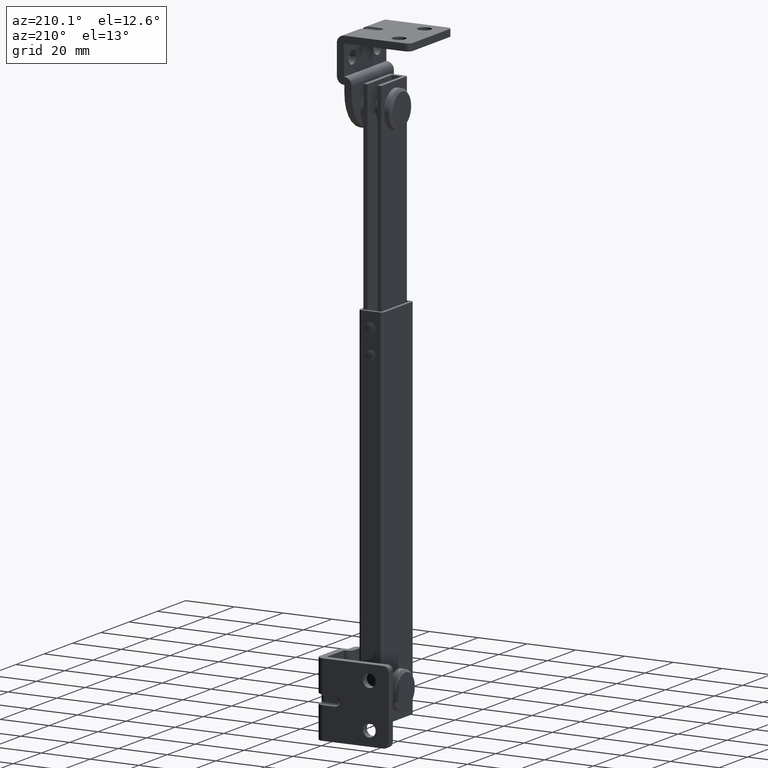
[diagram: clean part render]
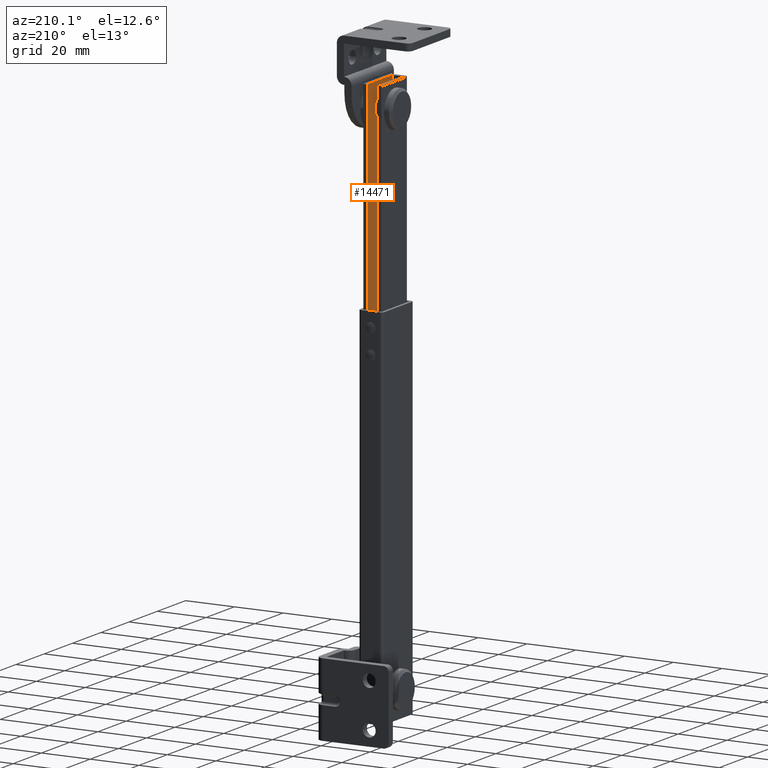
[diagram: same view with one face highlighted and labeled with its STEP entity id]
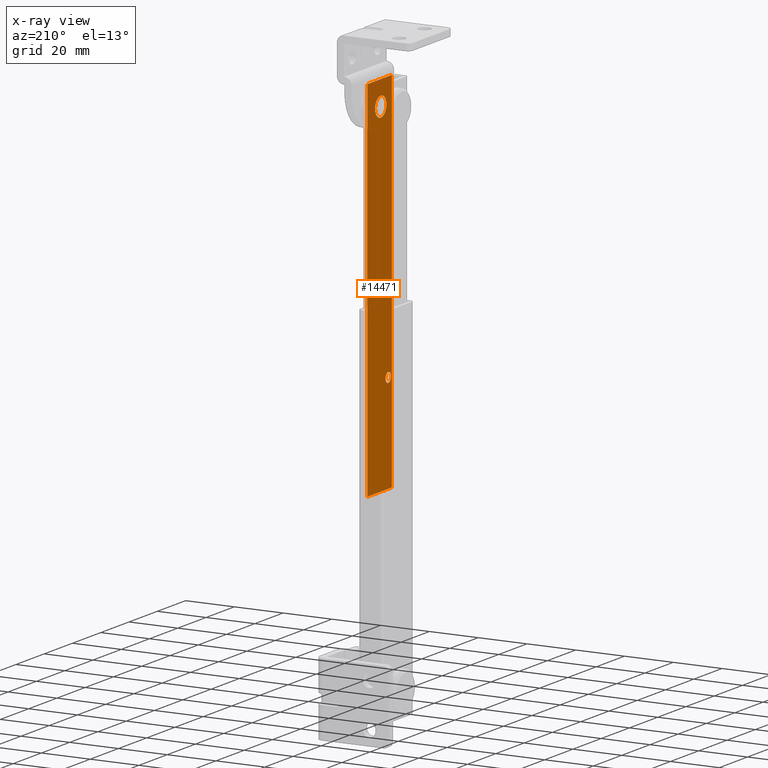
[diagram: x-ray of the same camera — body ghosted, the highlighted face saturated]
A machine part, auxiliary view. The second image highlights one B-rep face of the part: STEP entity #14471.
The next image is the same camera in x-ray: the body ghosted, the highlighted face saturated — about 0% of this face is hidden behind the body in this view.
In plain terms, the highlighted face is a freeform B-spline surface patch.
Its self-contained STEP definition (entity closure, byte-faithful):
#13164=CARTESIAN_POINT('',(7.199997000000000,-1.421085E-014,207.0));
#13165=VERTEX_POINT('',#13164);
#13166=CARTESIAN_POINT('',(7.199997000000000,-3.969064855180284,210.503487990706300));
#13167=VERTEX_POINT('',#13166);
#13168=CARTESIAN_POINT('',(7.199997000000000,-1.421085E-014,207.0));
#13169=CARTESIAN_POINT('',(7.199996999999998,-3.530794398853929,207.000000000000060));
#13170=CARTESIAN_POINT('',(7.199997000000000,-3.969064855180285,210.503487990706300));
#13178=(BOUNDED_CURVE()B_SPLINE_CURVE(2,(#13168,#13169,#13170),.UNSPECIFIED.,.F.,.U.)B_SPLINE_CURVE_WITH_KNOTS((3,3),(0.0,0.228526070946500),.UNSPECIFIED.)CURVE()GEOMETRIC_REPRESENTATION_ITEM()RATIONAL_B_SPLINE_CURVE((1.0,0.732265053990753,0.954005430114038))REPRESENTATION_ITEM(''));
#13179=EDGE_CURVE('',#13165,#13167,#13178,.T.);
#13220=CARTESIAN_POINT('',(7.199997000000000,3.999847692243370,211.034906143517700));
#13221=VERTEX_POINT('',#13220);
#13227=CARTESIAN_POINT('',(7.199997000000000,3.999847692243370,211.034906143517670));
#13228=CARTESIAN_POINT('',(7.199997000000000,3.999999999999986,211.017453404807010));
#13229=CARTESIAN_POINT('',(7.199997000000000,3.999999999999986,211.0));
#13230=CARTESIAN_POINT('',(7.199997000000001,3.999999999999987,207.000000000000090));
#13231=CARTESIAN_POINT('',(7.199997000000000,-1.421085E-014,207.0));
#13239=(BOUNDED_CURVE()B_SPLINE_CURVE(2,(#13227,#13228,#13229,#13230,#13231),.UNSPECIFIED.,.F.,.U.)B_SPLINE_CURVE_WITH_KNOTS((3,2,3),(0.748460105530773,0.750000000000000,1.0),.UNSPECIFIED.)CURVE()GEOMETRIC_REPRESENTATION_ITEM()RATIONAL_B_SPLINE_CURVE((0.996414027789737,0.998195901409100,1.0,0.707106781186548,1.0))REPRESENTATION_ITEM(''));
#13240=EDGE_CURVE('',#13221,#13165,#13239,.T.);
#13267=CARTESIAN_POINT('',(7.199997000000000,-1.421085E-014,215.0));
#13268=VERTEX_POINT('',#13267);
#13269=CARTESIAN_POINT('',(7.199996999999999,-3.969064855180285,210.503487990706390));
#13270=CARTESIAN_POINT('',(7.199996999999999,-4.000000000000013,210.750780288880290));
#13271=CARTESIAN_POINT('',(7.199997000000000,-4.000000000000014,211.0));
#13272=CARTESIAN_POINT('',(7.199997000000001,-4.000000000000015,214.999999999999940));
#13273=CARTESIAN_POINT('',(7.199997000000000,-1.421085E-014,215.0));
#13281=(BOUNDED_CURVE()B_SPLINE_CURVE(2,(#13269,#13270,#13271,#13272,#13273),.UNSPECIFIED.,.F.,.U.)B_SPLINE_CURVE_WITH_KNOTS((3,2,3),(0.228526070946500,0.250000000000000,0.500000000000000),.UNSPECIFIED.)CURVE()GEOMETRIC_REPRESENTATION_ITEM()RATIONAL_B_SPLINE_CURVE((0.954005430114038,0.974841727195795,1.0,0.707106781186548,1.0))REPRESENTATION_ITEM(''));
#13282=EDGE_CURVE('',#13167,#13268,#13281,.T.);
#13284=CARTESIAN_POINT('',(7.199997000000000,-1.421085E-014,215.0));
#13285=CARTESIAN_POINT('',(7.199997000000000,3.965244839357821,215.000000000000060));
#13286=CARTESIAN_POINT('',(7.199997000000001,3.999847692243370,211.034906143517650));
#13294=(BOUNDED_CURVE()B_SPLINE_CURVE(2,(#13284,#13285,#13286),.UNSPECIFIED.,.F.,.U.)B_SPLINE_CURVE_WITH_KNOTS((3,3),(0.500000000000000,0.748460105530772),.UNSPECIFIED.)CURVE()GEOMETRIC_REPRESENTATION_ITEM()RATIONAL_B_SPLINE_CURVE((1.0,0.708910879777448,0.996414027789735))REPRESENTATION_ITEM(''));
#13295=EDGE_CURVE('',#13268,#13221,#13294,.T.);
#13536=CARTESIAN_POINT('',(7.199997000000000,-5.273787244531961,113.500000000000000));
#13537=VERTEX_POINT('',#13536);
#13538=CARTESIAN_POINT('',(7.199997000000001,-7.267621752743235,111.656920214955900));
#13539=VERTEX_POINT('',#13538);
#13540=CARTESIAN_POINT('',(7.199997000000000,-5.273787244531961,113.500000000000000));
#13541=CARTESIAN_POINT('',(7.199997000000000,-7.122566345758976,113.500000000000030));
#13542=CARTESIAN_POINT('',(7.199997000000001,-7.267621752743235,111.656920214955860));
#13550=(BOUNDED_CURVE()B_SPLINE_CURVE(2,(#13540,#13541,#13542),.UNSPECIFIED.,.F.,.U.)B_SPLINE_CURVE_WITH_KNOTS((3,3),(0.500000000000000,0.736331126657737),.UNSPECIFIED.)CURVE()GEOMETRIC_REPRESENTATION_ITEM()RATIONAL_B_SPLINE_CURVE((1.0,0.723120862429623,0.969722993099484))REPRESENTATION_ITEM(''));
#13551=EDGE_CURVE('',#13537,#13539,#13550,.T.);
#13553=CARTESIAN_POINT('',(7.199997000000000,-3.279952736320685,111.343079785044200));
#13554=VERTEX_POINT('',#13553);
#13555=CARTESIAN_POINT('',(7.199997000000000,-3.279952736320685,111.343079785044170));
#13556=CARTESIAN_POINT('',(7.199997000000001,-3.273787244531961,111.421418769539320));
#13557=CARTESIAN_POINT('',(7.199997000000000,-3.273787244531960,111.500000000000000));
#13558=CARTESIAN_POINT('',(7.199997000000001,-3.273787244531960,113.500000000000000));
#13559=CARTESIAN_POINT('',(7.199997000000000,-5.273787244531961,113.500000000000000));
#13567=(BOUNDED_CURVE()B_SPLINE_CURVE(2,(#13555,#13556,#13557,#13558,#13559),.UNSPECIFIED.,.F.,.U.)B_SPLINE_CURVE_WITH_KNOTS((3,2,3),(0.236331126657739,0.250000000000000,0.500000000000000),.UNSPECIFIED.)CURVE()GEOMETRIC_REPRESENTATION_ITEM()RATIONAL_B_SPLINE_CURVE((0.969722993099489,0.983985918756927,1.0,0.707106781186548,1.0))REPRESENTATION_ITEM(''));
#13568=EDGE_CURVE('',#13554,#13537,#13567,.T.);
#13635=CARTESIAN_POINT('',(7.199997000000000,-5.273787244531961,109.500000000000000));
#13636=VERTEX_POINT('',#13635);
#13637=CARTESIAN_POINT('',(7.199997000000001,-7.267621752743235,111.656920214955860));
#13638=CARTESIAN_POINT('',(7.199997000000001,-7.273787244531961,111.578581230460800));
#13639=CARTESIAN_POINT('',(7.199997000000000,-7.273787244531961,111.500000000000000));
#13640=CARTESIAN_POINT('',(7.199997000000001,-7.273787244531961,109.499999999999990));
#13641=CARTESIAN_POINT('',(7.199997000000000,-5.273787244531961,109.500000000000000));
#13649=(BOUNDED_CURVE()B_SPLINE_CURVE(2,(#13637,#13638,#13639,#13640,#13641),.UNSPECIFIED.,.F.,.U.)B_SPLINE_CURVE_WITH_KNOTS((3,2,3),(0.736331126657738,0.750000000000000,1.0),.UNSPECIFIED.)CURVE()GEOMETRIC_REPRESENTATION_ITEM()RATIONAL_B_SPLINE_CURVE((0.969722993099485,0.983985918756925,1.0,0.707106781186548,1.0))REPRESENTATION_ITEM(''));
#13650=EDGE_CURVE('',#13539,#13636,#13649,.T.);
#13684=CARTESIAN_POINT('',(7.199997000000000,-5.273787244531961,109.500000000000000));
#13685=CARTESIAN_POINT('',(7.199996999999999,-3.425008143304920,109.499999999999990));
#13686=CARTESIAN_POINT('',(7.199997000000000,-3.279952736320685,111.343079785044170));
#13694=(BOUNDED_CURVE()B_SPLINE_CURVE(2,(#13684,#13685,#13686),.UNSPECIFIED.,.F.,.U.)B_SPLINE_CURVE_WITH_KNOTS((3,3),(0.0,0.236331126657739),.UNSPECIFIED.)CURVE()GEOMETRIC_REPRESENTATION_ITEM()RATIONAL_B_SPLINE_CURVE((1.0,0.723120862429620,0.969722993099489))REPRESENTATION_ITEM(''));
#13695=EDGE_CURVE('',#13636,#13554,#13694,.T.);
#13900=CARTESIAN_POINT('',(7.199997000000000,-7.900000000000000,96.500000000000000));
#13901=VERTEX_POINT('',#13900);
#14035=CARTESIAN_POINT('',(7.199997000000000,-7.900000000000000,124.500000000000000));
#14036=VERTEX_POINT('',#14035);
#14082=CARTESIAN_POINT('',(7.199997000000000,-7.900000000000000,124.500000000000000));
#14083=CARTESIAN_POINT('',(7.199997000000000,-7.900000000000000,96.500000000000000));
#14084=QUASI_UNIFORM_CURVE('',1,(#14082,#14083),.UNSPECIFIED.,.F.,.U.);
#14085=EDGE_CURVE('',#14036,#13901,#14084,.T.);
#14188=CARTESIAN_POINT('',(7.199997000000000,-7.900002000000000,71.0));
#14189=VERTEX_POINT('',#14188);
#14190=CARTESIAN_POINT('',(7.199997000000000,-7.900000000000000,96.500000000000000));
#14191=CARTESIAN_POINT('',(7.199997000000000,-7.900002000000000,71.0));
#14192=QUASI_UNIFORM_CURVE('',1,(#14190,#14191),.UNSPECIFIED.,.F.,.U.);
#14193=EDGE_CURVE('',#13901,#14189,#14192,.T.);
#14253=CARTESIAN_POINT('',(7.199997000000000,9.500000000000000,71.0));
#14254=VERTEX_POINT('',#14253);
#14255=CARTESIAN_POINT('',(7.199997000000000,9.500000000000000,71.0));
#14256=CARTESIAN_POINT('',(7.199997000000000,-7.900002000000000,71.0));
#14257=QUASI_UNIFORM_CURVE('',1,(#14255,#14256),.UNSPECIFIED.,.F.,.U.);
#14258=EDGE_CURVE('',#14254,#14189,#14257,.T.);
#14309=CARTESIAN_POINT('',(7.199997000000000,9.500000000000000,221.0));
#14310=VERTEX_POINT('',#14309);
#14324=CARTESIAN_POINT('',(7.199997000000000,9.500000000000000,221.0));
#14325=CARTESIAN_POINT('',(7.199997000000000,9.500000000000000,71.0));
#14326=QUASI_UNIFORM_CURVE('',1,(#14324,#14325),.UNSPECIFIED.,.F.,.U.);
#14327=EDGE_CURVE('',#14310,#14254,#14326,.T.);
#14345=CARTESIAN_POINT('',(7.199997000000000,-7.900002000000000,221.0));
#14346=VERTEX_POINT('',#14345);
#14347=CARTESIAN_POINT('',(7.199997000000000,9.500000000000000,221.0));
#14348=CARTESIAN_POINT('',(7.199997000000000,-7.900002000000000,221.0));
#14349=QUASI_UNIFORM_CURVE('',1,(#14347,#14348),.UNSPECIFIED.,.F.,.U.);
#14350=EDGE_CURVE('',#14310,#14346,#14349,.T.);
#14442=CARTESIAN_POINT('',(7.199997000000000,10.369130066175421,228.492499709270900));
#14443=CARTESIAN_POINT('',(7.199997000000000,10.369130066175421,63.507496267415583));
#14444=CARTESIAN_POINT('',(7.199997000000000,-8.769132532879844,228.492499709270900));
#14445=CARTESIAN_POINT('',(7.199997000000000,-8.769132532879844,63.507496267415583));
#14446=B_SPLINE_SURFACE_WITH_KNOTS('',1,1,((#14442,#14444),(#14443,#14445)),.UNSPECIFIED.,.F.,.F.,.U.,(2,2),(2,2),(0.0,164.985003441855300),(0.0,19.138262599055270),.UNSPECIFIED.);
#14447=ORIENTED_EDGE('',*,*,#14350,.F.);
#14448=ORIENTED_EDGE('',*,*,#14327,.T.);
#14449=ORIENTED_EDGE('',*,*,#14258,.T.);
#14450=ORIENTED_EDGE('',*,*,#14193,.F.);
#14451=ORIENTED_EDGE('',*,*,#14085,.F.);
#14452=CARTESIAN_POINT('',(7.199997000000000,-7.900002000000000,221.0));
#14453=CARTESIAN_POINT('',(7.199997000000000,-7.900000000000000,124.500000000000000));
#14454=QUASI_UNIFORM_CURVE('',1,(#14452,#14453),.UNSPECIFIED.,.F.,.U.);
#14455=EDGE_CURVE('',#14346,#14036,#14454,.T.);
#14456=ORIENTED_EDGE('',*,*,#14455,.F.);
#14457=EDGE_LOOP('',(#14447,#14448,#14449,#14450,#14451,#14456));
#14458=FACE_OUTER_BOUND('',#14457,.T.);
#14459=ORIENTED_EDGE('',*,*,#13695,.T.);
#14460=ORIENTED_EDGE('',*,*,#13568,.T.);
#14461=ORIENTED_EDGE('',*,*,#13551,.T.);
#14462=ORIENTED_EDGE('',*,*,#13650,.T.);
#14463=EDGE_LOOP('',(#14459,#14460,#14461,#14462));
#14464=FACE_BOUND('',#14463,.T.);
#14465=ORIENTED_EDGE('',*,*,#13295,.F.);
#14466=ORIENTED_EDGE('',*,*,#13282,.F.);
#14467=ORIENTED_EDGE('',*,*,#13179,.F.);
#14468=ORIENTED_EDGE('',*,*,#13240,.F.);
#14469=EDGE_LOOP('',(#14465,#14466,#14467,#14468));
#14470=FACE_BOUND('',#14469,.T.);
#14471=ADVANCED_FACE('',(#14458,#14464,#14470),#14446,.T.);